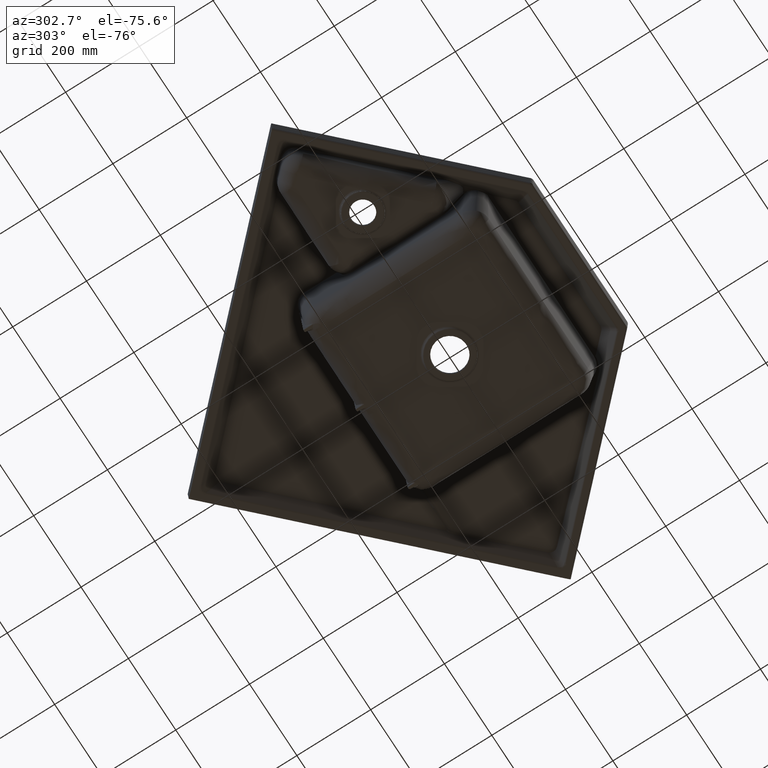
[diagram: clean part render]
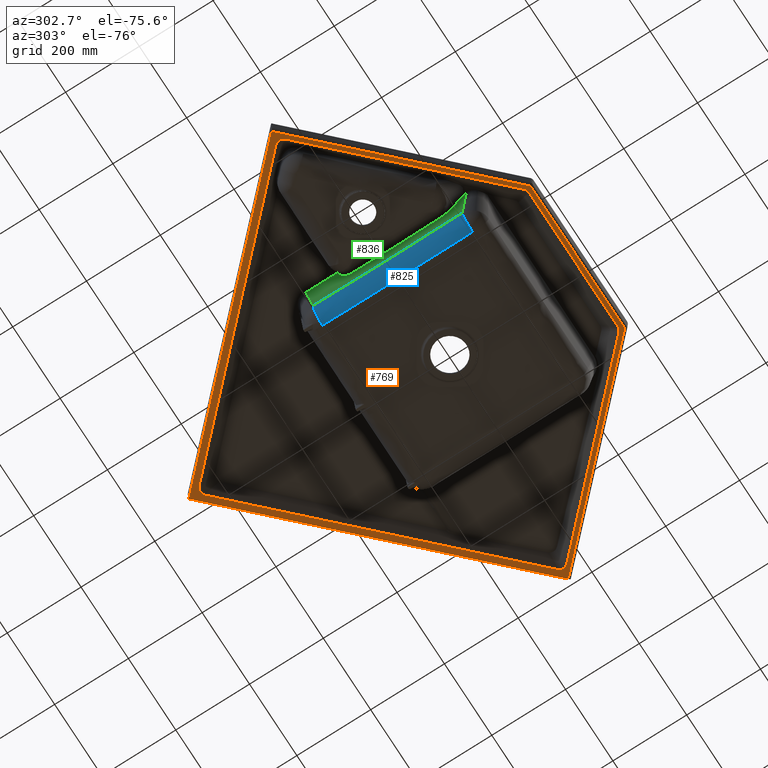
[diagram: same view with three faces highlighted in distinct colors, each labeled with its STEP entity id]
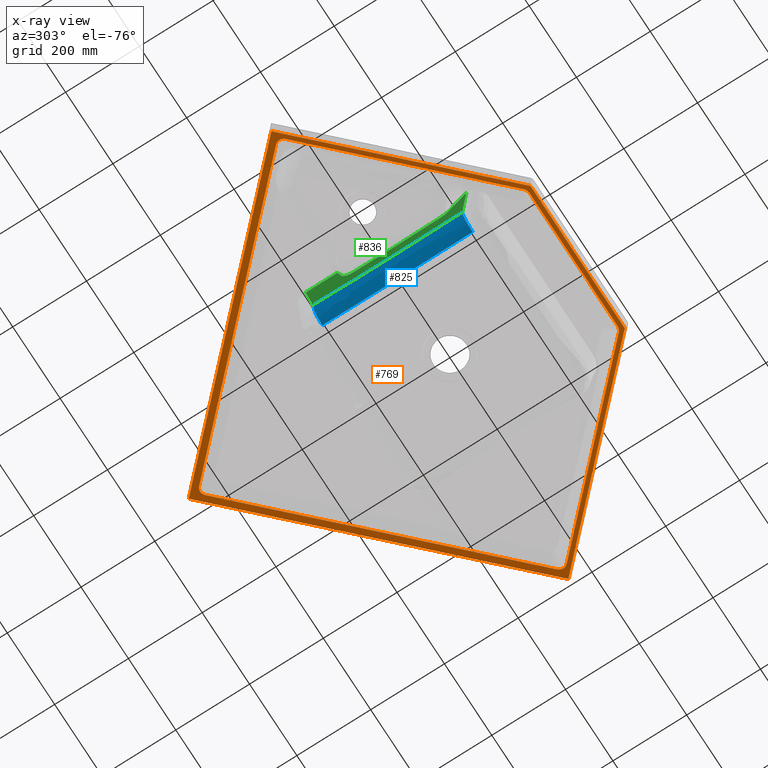
[diagram: x-ray of the same camera — body ghosted, the three highlighted faces saturated]
A machine part, auxiliary view with three faces highlighted in distinct colors.
The next image is the same camera in x-ray (body ghosted, the three faces saturated) — at least one of them is partly hidden behind the body in this view.
Their STEP definitions:

[orange] entity #769 — the highlighted planar face has unit normal (0, 0, -1).
#61=PLANE('',#6075);
#107=ELLIPSE('',#6073,4.00374727793932,4.);
#108=ELLIPSE('',#6074,4.00374727793932,4.);
#236=LINE('',#14063,#311);
#237=LINE('',#18926,#312);
#238=LINE('',#18940,#313);
#239=LINE('',#18953,#314);
#240=LINE('',#18986,#315);
#241=LINE('',#18997,#316);
#242=LINE('',#18998,#317);
#243=LINE('',#19000,#318);
#244=LINE('',#19004,#319);
#311=VECTOR('',#6630,1.);
#312=VECTOR('',#6643,1.);
#313=VECTOR('',#6644,1.);
#314=VECTOR('',#6645,1.);
#315=VECTOR('',#6646,1.);
#316=VECTOR('',#6649,1.);
#317=VECTOR('',#6650,1.);
#318=VECTOR('',#6651,1.);
#319=VECTOR('',#6654,1.);
#517=FACE_BOUND('',#1733,.T.);
#518=FACE_BOUND('',#1734,.T.);
#769=ADVANCED_FACE('',(#517,#518),#61,.T.);
#1733=EDGE_LOOP('',(#2946,#2947,#2948,#2949,#2950,#2951,#2952,#2953,#2954,
#2955));
#1734=EDGE_LOOP('',(#2956,#2957,#2958,#2959,#2960,#2961,#2962));
#2946=ORIENTED_EDGE('',*,*,#5016,.T.);
#2947=ORIENTED_EDGE('',*,*,#5017,.T.);
#2948=ORIENTED_EDGE('',*,*,#5018,.T.);
#2949=ORIENTED_EDGE('',*,*,#5019,.T.);
#2950=ORIENTED_EDGE('',*,*,#5020,.T.);
#2951=ORIENTED_EDGE('',*,*,#5021,.T.);
#2952=ORIENTED_EDGE('',*,*,#5022,.T.);
#2953=ORIENTED_EDGE('',*,*,#5023,.T.);
#2954=ORIENTED_EDGE('',*,*,#5024,.T.);
#2955=ORIENTED_EDGE('',*,*,#5025,.T.);
#2956=ORIENTED_EDGE('',*,*,#5026,.T.);
#2957=ORIENTED_EDGE('',*,*,#5027,.T.);
#2958=ORIENTED_EDGE('',*,*,#4999,.T.);
#2959=ORIENTED_EDGE('',*,*,#5028,.T.);
#2960=ORIENTED_EDGE('',*,*,#5029,.T.);
#2961=ORIENTED_EDGE('',*,*,#5030,.T.);
#2962=ORIENTED_EDGE('',*,*,#5031,.T.);
#4285=VERTEX_POINT('',#14062);
#4286=VERTEX_POINT('',#14064);
#4295=VERTEX_POINT('',#18927);
#4296=VERTEX_POINT('',#18928);
#4297=VERTEX_POINT('',#18939);
#4298=VERTEX_POINT('',#18941);
#4299=VERTEX_POINT('',#18952);
#4300=VERTEX_POINT('',#18954);
#4301=VERTEX_POINT('',#18965);
#4302=VERTEX_POINT('',#18978);
#4303=VERTEX_POINT('',#18985);
#4304=VERTEX_POINT('',#18987);
#4305=VERTEX_POINT('',#18995);
#4306=VERTEX_POINT('',#18996);
#4307=VERTEX_POINT('',#18999);
#4308=VERTEX_POINT('',#19001);
#4309=VERTEX_POINT('',#19003);
#4999=EDGE_CURVE('',#4286,#4285,#236,.T.);
#5016=EDGE_CURVE('',#4295,#4296,#237,.T.);
#5017=EDGE_CURVE('',#4296,#4297,#5636,.T.);
#5018=EDGE_CURVE('',#4297,#4298,#238,.T.);
#5019=EDGE_CURVE('',#4298,#4299,#5637,.T.);
#5020=EDGE_CURVE('',#4299,#4300,#239,.T.);
#5021=EDGE_CURVE('',#4300,#4301,#5638,.T.);
#5022=EDGE_CURVE('',#4301,#4302,#5639,.T.);
#5023=EDGE_CURVE('',#4302,#4303,#5640,.T.);
#5024=EDGE_CURVE('',#4303,#4304,#240,.T.);
#5025=EDGE_CURVE('',#4304,#4295,#5641,.T.);
#5026=EDGE_CURVE('',#4305,#4306,#107,.T.);
#5027=EDGE_CURVE('',#4306,#4286,#241,.T.);
#5028=EDGE_CURVE('',#4285,#4307,#242,.T.);
#5029=EDGE_CURVE('',#4307,#4308,#243,.T.);
#5030=EDGE_CURVE('',#4308,#4309,#108,.T.);
#5031=EDGE_CURVE('',#4309,#4305,#244,.T.);
#5636=B_SPLINE_CURVE_WITH_KNOTS('',3,(#18929,#18930,#18931,#18932,#18933,
#18934,#18935,#18936,#18937,#18938),.UNSPECIFIED.,.F.,.F.,(4,2,2,2,4),(0.,
0.25,0.5,0.75,1.),.UNSPECIFIED.);
#5637=B_SPLINE_CURVE_WITH_KNOTS('',3,(#18942,#18943,#18944,#18945,#18946,
#18947,#18948,#18949,#18950,#18951),.UNSPECIFIED.,.F.,.F.,(4,2,2,2,4),(0.,
0.25,0.5,0.75,1.),.UNSPECIFIED.);
#5638=B_SPLINE_CURVE_WITH_KNOTS('',3,(#18955,#18956,#18957,#18958,#18959,
#18960,#18961,#18962,#18963,#18964),.UNSPECIFIED.,.F.,.F.,(4,2,2,2,4),(0.,
0.25,0.5,0.75,1.),.UNSPECIFIED.);
#5639=B_SPLINE_CURVE_WITH_KNOTS('',3,(#18966,#18967,#18968,#18969,#18970,
#18971,#18972,#18973,#18974,#18975,#18976,#18977),.UNSPECIFIED.,.F.,.F.,
(4,2,2,2,2,4),(0.,0.0287990649625612,0.143995324812806,0.604780364213784,
0.676932956158185,1.),.UNSPECIFIED.);
#5640=B_SPLINE_CURVE_WITH_KNOTS('',3,(#18979,#18980,#18981,#18982,#18983,
#18984),.UNSPECIFIED.,.F.,.F.,(4,2,4),(0.,0.5,1.),.UNSPECIFIED.);
#5641=B_SPLINE_CURVE_WITH_KNOTS('',3,(#18988,#18989,#18990,#18991,#18992,
#18993),.UNSPECIFIED.,.F.,.F.,(4,2,4),(0.,0.5,1.),.UNSPECIFIED.);
#6073=AXIS2_PLACEMENT_3D('',#18994,#6647,#6648);
#6074=AXIS2_PLACEMENT_3D('',#19002,#6652,#6653);
#6075=AXIS2_PLACEMENT_3D('',#19005,#6655,#6656);
#6630=DIRECTION('',(0.707106781186547,0.707106781186548,0.));
#6643=DIRECTION('',(0.707106781186646,0.707106781186449,0.));
#6644=DIRECTION('',(-0.70710678118652,0.707106781186575,0.));
#6645=DIRECTION('',(-0.707106781186574,-0.707106781186521,0.));
#6646=DIRECTION('',(1.,0.,0.));
#6647=DIRECTION('',(1.41117820816041E-16,2.78371802776587E-15,-1.));
#6648=DIRECTION('',(-0.382683432365119,-0.923879532511275,-2.62582356217331E-15));
#6649=DIRECTION('',(-0.707106781186547,0.707106781186548,1.8686005262992E-15));
#6650=DIRECTION('',(0.707106781186547,-0.707106781186547,0.));
#6651=DIRECTION('',(-0.707106781186547,-0.707106781186548,-2.06817126238978E-15));
#6652=DIRECTION('',(1.41117820816041E-16,2.78371802776587E-15,-1.));
#6653=DIRECTION('',(0.382683432365125,-0.923879532511272,-2.51781665809776E-15));
#6654=DIRECTION('',(-1.,5.64471283264162E-18,-1.41117820816041E-16));
#6655=DIRECTION('',(1.41117820816041E-16,2.78371802776587E-15,-1.));
#6656=DIRECTION('',(0.,-1.,-2.77555756156289E-15));
#14062=CARTESIAN_POINT('',(-1.13686837721616E-13,708.074385342194,150.));
#14063=CARTESIAN_POINT('',(-315.3696244092,392.704760932994,150.));
#14064=CARTESIAN_POINT('',(-626.662921002776,81.4114643394183,150.));
#18926=CARTESIAN_POINT('',(396.716341497165,-133.089791050994,150.000000000001));
#18927=CARTESIAN_POINT('',(200.29141392239,-329.514718625769,150.));
#18928=CARTESIAN_POINT('',(593.14126907194,63.3351365237822,150.000000000001));
#18929=CARTESIAN_POINT('',(593.14126907194,63.3351365237822,150.000000000001));
#18930=CARTESIAN_POINT('',(595.018846259465,65.2127137113054,150.000000000001));
#18931=CARTESIAN_POINT('',(596.638625974468,67.3318133328262,150.000000000001));
#18932=CARTESIAN_POINT('',(598.965149535184,72.0725209781968,150.000000000001));
#18933=CARTESIAN_POINT('',(599.635371781057,74.6852958024811,150.000000000001));
#18934=CARTESIAN_POINT('',(599.64198601574,79.9443139832494,150.000000000001));
#18935=CARTESIAN_POINT('',(598.972643789954,82.5758602953495,150.000000000001));
#18936=CARTESIAN_POINT('',(596.650383859697,87.3210672198435,150.000000000001));
#18937=CARTESIAN_POINT('',(595.02201375674,89.4543918390077,150.000000000001));
#18938=CARTESIAN_POINT('',(593.141269071942,91.3351365238038,150.000000000001));
#18939=CARTESIAN_POINT('',(593.141269071942,91.3351365238038,150.000000000001));
#18940=CARTESIAN_POINT('',(303.570634535976,380.905771059769,150.000000000002));
#18941=CARTESIAN_POINT('',(14.0000000000085,670.476405595735,150.000000000003));
#18942=CARTESIAN_POINT('',(14.0000000000085,670.476405595735,150.000000000003));
#18943=CARTESIAN_POINT('',(12.1224228124852,672.35398278326,150.000000000003));
#18944=CARTESIAN_POINT('',(10.0033231909645,673.973762498262,150.000000000003));
#18945=CARTESIAN_POINT('',(5.26261554559427,676.300286058977,150.000000000003));
#18946=CARTESIAN_POINT('',(2.6498407213102,676.97050830485,150.000000000003));
#18947=CARTESIAN_POINT('',(-2.60917745945725,676.977122539532,150.000000000003));
#18948=CARTESIAN_POINT('',(-5.24072377155704,676.307780313745,150.000000000003));
#18949=CARTESIAN_POINT('',(-9.98593069605024,673.985520383489,150.000000000003));
#18950=CARTESIAN_POINT('',(-12.1192553152139,672.357150280532,150.000000000003));
#18951=CARTESIAN_POINT('',(-14.0000000000098,670.476405595734,150.000000000003));
#18952=CARTESIAN_POINT('',(-14.0000000000098,670.476405595734,150.000000000003));
#18953=CARTESIAN_POINT('',(-303.570634535981,380.905771059764,150.000000000002));
#18954=CARTESIAN_POINT('',(-593.141269071952,91.3351365237943,150.000000000001));
#18955=CARTESIAN_POINT('',(-593.141269071952,91.3351365237943,150.000000000001));
#18956=CARTESIAN_POINT('',(-595.018846259475,89.4575593362717,150.000000000001));
#18957=CARTESIAN_POINT('',(-596.638625974475,87.338459714752,150.000000000001));
#18958=CARTESIAN_POINT('',(-598.965149535186,82.597752069385,150.000000000001));
#18959=CARTESIAN_POINT('',(-599.635371781058,79.9849772451028,150.000000000001));
#18960=CARTESIAN_POINT('',(-599.64198601574,74.7259590643398,150.000000000001));
#18961=CARTESIAN_POINT('',(-598.972643789955,72.0944127522422,150.000000000001));
#18962=CARTESIAN_POINT('',(-596.650383859702,67.3492058277521,150.000000000001));
#18963=CARTESIAN_POINT('',(-595.022013756747,65.2158812085894,150.000000000001));
#18964=CARTESIAN_POINT('',(-593.141269071952,63.3351365237942,150.000000000001));
#18965=CARTESIAN_POINT('',(-593.141269071952,63.3351365237942,150.000000000001));
#18966=CARTESIAN_POINT('',(-593.141269071952,63.3351365237942,150.000000000001));
#18967=CARTESIAN_POINT('',(-589.370032905624,59.5639003574659,150.000000000001));
#18968=CARTESIAN_POINT('',(-585.598796739296,55.7926641911377,150.000000000001));
#18969=CARTESIAN_POINT('',(-566.742615907654,36.9364833594964,150.000000000001));
#18970=CARTESIAN_POINT('',(-551.657671242341,21.8515386941833,150.000000000001));
#18971=CARTESIAN_POINT('',(-476.232947915777,-53.5731846323819,150.000000000001));
#18972=CARTESIAN_POINT('',(-415.893169254525,-113.912963293634,150.000000000001));
#18973=CARTESIAN_POINT('',(-346.105012161932,-183.701120386227,150.));
#18974=CARTESIAN_POINT('',(-336.656633730591,-193.149498817568,150.));
#18975=CARTESIAN_POINT('',(-284.902641506966,-244.903491041193,150.));
#18976=CARTESIAN_POINT('',(-242.597027714682,-287.209104833477,150.));
#18977=CARTESIAN_POINT('',(-200.291413922398,-329.514718625761,150.));
#18978=CARTESIAN_POINT('',(-200.291413922398,-329.514718625761,150.));
#18979=CARTESIAN_POINT('',(-200.291413922398,-329.514718625761,150.));
#18980=CARTESIAN_POINT('',(-198.439344425466,-331.366788122693,150.));
#18981=CARTESIAN_POINT('',(-196.320257357541,-332.823050089663,150.));
#18982=CARTESIAN_POINT('',(-191.474933447418,-334.835579122223,150.));
#18983=CARTESIAN_POINT('',(-188.912445502729,-335.313708498983,150.));
#18984=CARTESIAN_POINT('',(-186.291413922411,-335.313708498985,150.));
#18985=CARTESIAN_POINT('',(-186.291413922411,-335.313708498985,150.));
#18986=CARTESIAN_POINT('',(-3.22658566531686E-12,-335.313708498985,150.));
#18987=CARTESIAN_POINT('',(186.291413922404,-335.313708498985,150.));
#18988=CARTESIAN_POINT('',(186.291413922404,-335.313708498985,150.));
#18989=CARTESIAN_POINT('',(188.910635723422,-335.313708498984,150.));
#18990=CARTESIAN_POINT('',(191.438789271104,-334.845020375357,150.));
#18991=CARTESIAN_POINT('',(196.288023591254,-332.841931907721,150.));
#18992=CARTESIAN_POINT('',(198.438064718242,-331.368067829915,150.));
#18993=CARTESIAN_POINT('',(200.29141392239,-329.514718625769,150.));
#18994=CARTESIAN_POINT('',(-197.35807554177,-342.232003197443,150.));
#18995=CARTESIAN_POINT('',(-197.360724390337,-346.235201918465,150.));
#18996=CARTESIAN_POINT('',(-200.186891485058,-345.064565178299,150.));
#18997=CARTESIAN_POINT('',(-146.976756405331,-398.274700258027,150.));
#18998=CARTESIAN_POINT('',(315.3696244092,392.704760932994,150.));
#18999=CARTESIAN_POINT('',(626.662921002776,81.4114643394183,150.));
#19000=CARTESIAN_POINT('',(46.2747002580274,-498.97675640533,150.));
#19001=CARTESIAN_POINT('',(200.186891485058,-345.064565178299,150.));
#19002=CARTESIAN_POINT('',(197.35807554177,-342.232003197442,150.));
#19003=CARTESIAN_POINT('',(197.360724390337,-346.235201918465,150.));
#19004=CARTESIAN_POINT('',(-100.702056147303,-346.235201918465,150.));
#19005=CARTESIAN_POINT('',(-100.702056147303,-352.,150.));

[blue] entity #825 — the highlighted face is a freeform B-spline surface patch.
#475=CIRCLE('',#6055,44.);
#481=CIRCLE('',#6089,44.0000000000001);
#825=ADVANCED_FACE('',(#1402),#1088,.T.);
#1088=(
BOUNDED_SURFACE()
B_SPLINE_SURFACE(3,2,((#24753,#24754,#24755),(#24756,#24757,#24758),(#24759,
#24760,#24761),(#24762,#24763,#24764),(#24765,#24766,#24767),(#24768,#24769,
#24770),(#24771,#24772,#24773),(#24774,#24775,#24776),(#24777,#24778,#24779),
(#24780,#24781,#24782)),.UNSPECIFIED.,.F.,.F.,.F.)
B_SPLINE_SURFACE_WITH_KNOTS((4,2,2,2,4),(3,3),(0.,0.25,0.5,0.75,1.),(0.,
1.),.UNSPECIFIED.)
GEOMETRIC_REPRESENTATION_ITEM()
RATIONAL_B_SPLINE_SURFACE(((1.,0.74216822810571,1.),(1.,0.743477455896361,
1.),(1.,0.745037868931254,1.),(1.,0.747746309309219,1.),(1.,0.748833363440037,
1.),(1.,0.749057293900004,1.),(1.,0.748164866127767,1.),(1.,0.745601054936324,
1.),(1.,0.744016390055633,1.),(1.,0.742670123058352,1.)))
REPRESENTATION_ITEM('')
SURFACE()
);
#1402=FACE_OUTER_BOUND('',#1794,.T.);
#1794=EDGE_LOOP('',(#3281,#3282,#3283,#3284));
#3281=ORIENTED_EDGE('',*,*,#4950,.F.);
#3282=ORIENTED_EDGE('',*,*,#5099,.T.);
#3283=ORIENTED_EDGE('',*,*,#5071,.T.);
#3284=ORIENTED_EDGE('',*,*,#5117,.T.);
#4251=VERTEX_POINT('',#13420);
#4252=VERTEX_POINT('',#13422);
#4332=VERTEX_POINT('',#19783);
#4333=VERTEX_POINT('',#19784);
#4950=EDGE_CURVE('',#4251,#4252,#475,.T.);
#5071=EDGE_CURVE('',#4332,#4333,#481,.T.);
#5099=EDGE_CURVE('',#4251,#4332,#5688,.T.);
#5117=EDGE_CURVE('',#4333,#4252,#5706,.T.);
#5688=B_SPLINE_CURVE_WITH_KNOTS('',3,(#20745,#20746,#20747,#20748,#20749,
#20750,#20751,#20752,#20753,#20754),.UNSPECIFIED.,.F.,.F.,(4,2,2,2,4),(0.,
0.25,0.5,0.75,1.),.UNSPECIFIED.);
#5706=B_SPLINE_CURVE_WITH_KNOTS('',3,(#24747,#24748,#24749,#24750,#24751,
#24752),.UNSPECIFIED.,.F.,.F.,(4,2,4),(0.,0.5,1.),.UNSPECIFIED.);
#6055=AXIS2_PLACEMENT_3D('',#13421,#6597,#6598);
#6089=AXIS2_PLACEMENT_3D('',#19782,#6686,#6687);
#6597=DIRECTION('',(-0.00258642501371604,0.998778102226912,0.0493519292191908));
#6598=DIRECTION('',(0.,-0.0493520942922123,0.998781442953849));
#6686=DIRECTION('',(0.00250530927490152,0.998853586263086,-0.0478041487196422));
#6687=DIRECTION('',(0.,0.0478042987435006,0.998856720967348));
#13420=CARTESIAN_POINT('',(-211.52890576607,210.180921392272,1.40993724394285));
#13421=CARTESIAN_POINT('',(-209.35149051798,208.017714689607,45.3027544194094));
#13422=CARTESIAN_POINT('',(-253.291190047182,208.017714689607,42.9999723447199));
#19782=CARTESIAN_POINT('',(-209.319608386237,-195.512416990785,44.6944071057174));
#19783=CARTESIAN_POINT('',(-211.562694144095,-197.607457894971,0.801590268645903));
#19784=CARTESIAN_POINT('',(-253.259307915439,-195.512416991055,42.3916250310393));
#20745=CARTESIAN_POINT('',(-211.528905757382,210.180921392315,1.409937243514));
#20746=CARTESIAN_POINT('',(-211.615962677794,176.400028800175,-0.250596276617449));
#20747=CARTESIAN_POINT('',(-211.740832171616,142.545459827731,-1.71916204338613));
#20748=CARTESIAN_POINT('',(-211.984346319801,74.6012719761885,-3.87091164433834));
#20749=CARTESIAN_POINT('',(-212.09315921679,40.4972765373179,-4.53318028471138));
#20750=CARTESIAN_POINT('',(-212.115332754531,-27.7989583034788,-4.67407963460889));
#20751=CARTESIAN_POINT('',(-212.024936466819,-61.9283659767144,-4.14951842492736));
#20752=CARTESIAN_POINT('',(-211.789449455072,-129.926670862561,-2.20339384827308));
#20753=CARTESIAN_POINT('',(-211.657213279966,-163.808234916033,-0.806844669530122));
#20754=CARTESIAN_POINT('',(-211.562694135415,-197.607457895014,0.801590268204371));
#24747=CARTESIAN_POINT('',(-253.259307915439,-195.512416991048,42.3916250310402));
#24748=CARTESIAN_POINT('',(-253.090710966387,-128.293703166067,39.1746036010473));
#24749=CARTESIAN_POINT('',(-252.968647863829,-61.0511729776101,36.8455008566113));
#24750=CARTESIAN_POINT('',(-252.983416978318,73.5663919201783,37.127312348935));
#24751=CARTESIAN_POINT('',(-253.11713348417,140.803748399114,39.6787752745064));
#24752=CARTESIAN_POINT('',(-253.291190047182,208.017714689607,42.9999723447199));
#24753=CARTESIAN_POINT('',(-211.52890576607,210.180921392271,1.40993724394284));
#24754=CARTESIAN_POINT('',(-251.21420794083,209.981361187402,3.36879287546678));
#24755=CARTESIAN_POINT('',(-253.291190047182,208.017714689607,42.9999723447199));
#24756=CARTESIAN_POINT('',(-211.615962686461,176.400028800133,-0.250596276154933));
#24757=CARTESIAN_POINT('',(-251.135203922481,176.268876322154,1.86130634188282));
#24758=CARTESIAN_POINT('',(-253.204161917322,174.410790131112,41.339376703197));
#24759=CARTESIAN_POINT('',(-211.740832180259,142.545459827693,-1.71916204288475));
#24760=CARTESIAN_POINT('',(-251.067225233209,142.432602543775,0.564195745656528));
#24761=CARTESIAN_POINT('',(-253.127200934859,140.797999728248,39.8708736771992));
#24762=CARTESIAN_POINT('',(-211.9843463284,74.6012719761637,-3.87091164376877));
#24763=CARTESIAN_POINT('',(-250.970225878508,74.5503316736031,-1.28666221008084));
#24764=CARTESIAN_POINT('',(-253.014432556499,73.5490369410428,37.7191248356563));
#24765=CARTESIAN_POINT('',(-212.093159225371,40.4972765373039,-4.53318028411454));
#24766=CARTESIAN_POINT('',(-250.941690366279,40.4388343447684,-1.83115222298741));
#24767=CARTESIAN_POINT('',(-252.979724699718,39.9120006960563,37.0568594762696));
#24768=CARTESIAN_POINT('',(-212.115332763108,-27.7989583034692,-4.67407963400643));
#24769=CARTESIAN_POINT('',(-250.935596610307,-27.7502076971813,-1.94742799636251));
#24770=CARTESIAN_POINT('',(-252.97234014243,-27.3967817534879,36.9159537292765));
#24771=CARTESIAN_POINT('',(-212.024936475411,-61.9283659766931,-4.14951842434728));
#24772=CARTESIAN_POINT('',(-250.958030944742,-61.8900668960019,-1.51935541587166));
#24773=CARTESIAN_POINT('',(-252.999831458024,-61.0352129849832,37.4405192798625));
#24774=CARTESIAN_POINT('',(-211.789449463706,-129.926670862524,-2.2033938477575));
#24775=CARTESIAN_POINT('',(-251.045125362374,-129.819070870445,0.142505097185275));
#24776=CARTESIAN_POINT('',(-253.101823380653,-128.288015751763,39.3866410965879));
#24777=CARTESIAN_POINT('',(-211.657213288624,-163.808234915992,-0.806844669054035));
#24778=CARTESIAN_POINT('',(-251.109212301612,-163.684177966742,1.36535667152964));
#24779=CARTESIAN_POINT('',(-253.175009575398,-161.90311365949,40.7831168821708));
#24780=CARTESIAN_POINT('',(-211.562694144095,-197.607457894971,0.801590268645909));
#24781=CARTESIAN_POINT('',(-251.185295177605,-197.411616568414,2.81710448834306));
#24782=CARTESIAN_POINT('',(-253.259307915439,-195.512416991048,42.3916250310402));

[green] entity #836 — the highlighted planar face has unit normal (-0.9986, 0, -0.0523).
#83=PLANE('',#6111);
#836=ADVANCED_FACE('',(#1413),#83,.T.);
#1413=FACE_OUTER_BOUND('',#1805,.T.);
#1805=EDGE_LOOP('',(#3330,#3331,#3332,#3333,#3334,#3335,#3336,#3337,#3338,
#3339,#3340,#3341));
#3330=ORIENTED_EDGE('',*,*,#5076,.F.);
#3331=ORIENTED_EDGE('',*,*,#5075,.T.);
#3332=ORIENTED_EDGE('',*,*,#5117,.F.);
#3333=ORIENTED_EDGE('',*,*,#5089,.T.);
#3334=ORIENTED_EDGE('',*,*,#5088,.F.);
#3335=ORIENTED_EDGE('',*,*,#4892,.F.);
#3336=ORIENTED_EDGE('',*,*,#4930,.F.);
#3337=ORIENTED_EDGE('',*,*,#4928,.F.);
#3338=ORIENTED_EDGE('',*,*,#4925,.F.);
#3339=ORIENTED_EDGE('',*,*,#4922,.F.);
#3340=ORIENTED_EDGE('',*,*,#4917,.F.);
#3341=ORIENTED_EDGE('',*,*,#4622,.F.);
#4050=VERTEX_POINT('',#9834);
#4053=VERTEX_POINT('',#9849);
#4211=VERTEX_POINT('',#12350);
#4212=VERTEX_POINT('',#12354);
#4227=VERTEX_POINT('',#12664);
#4230=VERTEX_POINT('',#12696);
#4232=VERTEX_POINT('',#12818);
#4234=VERTEX_POINT('',#12880);
#4252=VERTEX_POINT('',#13422);
#4333=VERTEX_POINT('',#19784);
#4335=VERTEX_POINT('',#19884);
#4341=VERTEX_POINT('',#20253);
#4622=EDGE_CURVE('',#4053,#4050,#5456,.T.);
#4892=EDGE_CURVE('',#4211,#4212,#5538,.T.);
#4917=EDGE_CURVE('',#4050,#4227,#5555,.T.);
#4922=EDGE_CURVE('',#4227,#4230,#5557,.T.);
#4925=EDGE_CURVE('',#4230,#4232,#5560,.T.);
#4928=EDGE_CURVE('',#4232,#4234,#5563,.T.);
#4930=EDGE_CURVE('',#4234,#4211,#5564,.T.);
#5075=EDGE_CURVE('',#4335,#4252,#5667,.T.);
#5076=EDGE_CURVE('',#4335,#4053,#5668,.T.);
#5088=EDGE_CURVE('',#4212,#4341,#5680,.T.);
#5089=EDGE_CURVE('',#4333,#4341,#5681,.T.);
#5117=EDGE_CURVE('',#4333,#4252,#5706,.T.);
#5456=B_SPLINE_CURVE_WITH_KNOTS('',3,(#9851,#9852,#9853,#9854,#9855,#9856,
#9857,#9858),.UNSPECIFIED.,.F.,.F.,(4,2,2,4),(0.,0.0701197670714171,0.350598835357084,
1.),.UNSPECIFIED.);
#5538=B_SPLINE_CURVE_WITH_KNOTS('',3,(#12360,#12361,#12362,#12363),
 .UNSPECIFIED.,.F.,.F.,(4,4),(0.,1.),.UNSPECIFIED.);
#5555=B_SPLINE_CURVE_WITH_KNOTS('',3,(#12660,#12661,#12662,#12663),
 .UNSPECIFIED.,.F.,.F.,(4,4),(0.,1.),.UNSPECIFIED.);
#5557=B_SPLINE_CURVE_WITH_KNOTS('',3,(#12723,#12724,#12725,#12726,#12727,
#12728,#12729,#12730,#12731,#12732),.UNSPECIFIED.,.F.,.F.,(4,2,2,2,4),(0.,
0.25,0.5,0.75,1.),.UNSPECIFIED.);
#5560=B_SPLINE_CURVE_WITH_KNOTS('',3,(#12829,#12830,#12831,#12832,#12833,
#12834,#12835,#12836,#12837,#12838),.UNSPECIFIED.,.F.,.F.,(4,2,2,2,4),(0.,
0.25,0.5,0.75,1.),.UNSPECIFIED.);
#5563=B_SPLINE_CURVE_WITH_KNOTS('',3,(#12895,#12896,#12897,#12898,#12899,
#12900,#12901,#12902,#12903,#12904,#12905,#12906,#12907,#12908,#12909,#12910,
#12911,#12912,#12913,#12914,#12915,#12916,#12917,#12918,#12919,#12920,#12921,
#12922,#12923,#12924,#12925,#12926,#12927,#12928,#12929,#12930,#12931,#12932,
#12933,#12934,#12935,#12936,#12937,#12938,#12939,#12940,#12941,#12942,#12943,
#12944,#12945,#12946,#12947),.UNSPECIFIED.,.F.,.F.,(4,2,2,2,2,2,2,1,1,2,
2,2,2,2,2,2,2,2,2,1,2,2,2,2,2,2,2,4),(0.,0.0156249999999917,0.0312499999999834,
0.06249999999997,0.0937499999999565,0.124999999999943,0.15624999999993,
0.187499999999916,0.218749999999903,0.234374999999898,0.249999999999893,
0.312499999999888,0.374999999999883,0.49999999999987,0.562499999999863,
0.593749999999859,0.624999999999855,0.687499999999847,0.718749999999845,
0.734374999999846,0.742187499999849,0.749999999999852,0.812499999999888,
0.843749999999906,0.859374999999915,0.867187499999919,0.874999999999923,
1.),.UNSPECIFIED.);
#5564=B_SPLINE_CURVE_WITH_KNOTS('',3,(#13154,#13155,#13156,#13157),
 .UNSPECIFIED.,.F.,.F.,(4,4),(0.,1.),.UNSPECIFIED.);
#5667=B_SPLINE_CURVE_WITH_KNOTS('',3,(#19880,#19881,#19882,#19883),
 .UNSPECIFIED.,.F.,.F.,(4,4),(0.,1.),.UNSPECIFIED.);
#5668=B_SPLINE_CURVE_WITH_KNOTS('',3,(#19885,#19886,#19887,#19888),
 .UNSPECIFIED.,.F.,.F.,(4,4),(0.,1.),.UNSPECIFIED.);
#5680=B_SPLINE_CURVE_WITH_KNOTS('',3,(#20249,#20250,#20251,#20252),
 .UNSPECIFIED.,.F.,.F.,(4,4),(0.,1.),.UNSPECIFIED.);
#5681=B_SPLINE_CURVE_WITH_KNOTS('',3,(#20254,#20255,#20256,#20257),
 .UNSPECIFIED.,.F.,.F.,(4,4),(0.,1.),.UNSPECIFIED.);
#5706=B_SPLINE_CURVE_WITH_KNOTS('',3,(#24747,#24748,#24749,#24750,#24751,
#24752),.UNSPECIFIED.,.F.,.F.,(4,2,4),(0.,0.5,1.),.UNSPECIFIED.);
#6111=AXIS2_PLACEMENT_3D('',#29044,#6730,#6731);
#6730=DIRECTION('',(-0.998629534754574,0.,-0.0523359562429485));
#6731=DIRECTION('',(-0.0523359562429485,0.,0.998629534754574));
#9834=CARTESIAN_POINT('',(-260.060023457776,138.288211357387,172.157007868729));
#9849=CARTESIAN_POINT('',(-260.060023457776,223.856094004359,172.157007868729));
#9851=CARTESIAN_POINT('',(-260.060023457776,223.856094004359,172.157007868729));
#9852=CARTESIAN_POINT('',(-260.060023457776,221.856094004359,172.157007868729));
#9853=CARTESIAN_POINT('',(-260.060023457776,219.856094004359,172.157007868729));
#9854=CARTESIAN_POINT('',(-260.060023457776,209.856094004359,172.157007868729));
#9855=CARTESIAN_POINT('',(-260.060023457776,201.856094004359,172.157007868729));
#9856=CARTESIAN_POINT('',(-260.060023457776,175.333466455368,172.157007868729));
#9857=CARTESIAN_POINT('',(-260.060023457776,156.810838906378,172.157007868729));
#9858=CARTESIAN_POINT('',(-260.060023457776,138.288211357387,172.157007868729));
#12350=CARTESIAN_POINT('',(-259.798033664687,-208.050788995485,167.157944816013));
#12354=CARTESIAN_POINT('',(-259.801363019321,-211.045266247722,167.221472686862));
#12360=CARTESIAN_POINT('',(-259.798033664687,-208.05078899549,167.157944816013));
#12361=CARTESIAN_POINT('',(-259.79776951583,-209.049160537502,167.152904555558));
#12362=CARTESIAN_POINT('',(-259.798838162814,-210.048048217928,167.173295554733));
#12363=CARTESIAN_POINT('',(-259.80136301932,-211.045266247718,167.221472686853));
#12660=CARTESIAN_POINT('',(-260.060023457776,138.288211357387,172.157007868729));
#12661=CARTESIAN_POINT('',(-259.32463153824,135.214349733057,158.12489413302));
#12662=CARTESIAN_POINT('',(-258.595243968356,131.682853174511,144.207350213728));
#12663=CARTESIAN_POINT('',(-257.871672630451,127.708059490736,130.400786611842));
#12664=CARTESIAN_POINT('',(-257.871679652472,127.707592995666,130.400920599976));
#12696=CARTESIAN_POINT('',(-256.470666480267,97.2976436962156,103.667996759837));
#12723=CARTESIAN_POINT('',(-257.871686674492,127.707126500596,130.401054588109));
#12724=CARTESIAN_POINT('',(-257.688755915831,126.701813163793,126.910527777703));
#12725=CARTESIAN_POINT('',(-257.513140434661,125.379799854886,123.559584777027));
#12726=CARTESIAN_POINT('',(-257.183170621196,121.81531529645,117.263385663469));
#12727=CARTESIAN_POINT('',(-257.030863500576,119.580236477627,114.3571926764));
#12728=CARTESIAN_POINT('',(-256.774010752095,114.284578028146,109.456150274016));
#12729=CARTESIAN_POINT('',(-256.668602389516,111.196992760526,107.44483889962));
#12730=CARTESIAN_POINT('',(-256.522262110893,104.557541619162,104.652500040303));
#12731=CARTESIAN_POINT('',(-256.48009957777,100.947079734434,103.847990982682));
#12732=CARTESIAN_POINT('',(-256.470666480267,97.2976436962156,103.667996759837));
#12818=CARTESIAN_POINT('',(-256.59323995584,-141.804193486218,106.00683800153));
#12829=CARTESIAN_POINT('',(-256.470656345122,97.2976532606261,103.667803369749));
#12830=CARTESIAN_POINT('',(-256.419159230422,77.3772785834937,102.685179885126));
#12831=CARTESIAN_POINT('',(-256.372493597189,57.4539764375173,101.794746558787));
#12832=CARTESIAN_POINT('',(-256.314267619426,17.586101311839,100.683728718319));
#12833=CARTESIAN_POINT('',(-256.306514795349,-2.37040470375829,100.535796022399));
#12834=CARTESIAN_POINT('',(-256.343596042339,-42.2400479580647,101.243348364753));
#12835=CARTESIAN_POINT('',(-256.384583656637,-62.1591418094944,102.025438635678));
#12836=CARTESIAN_POINT('',(-256.480550978321,-101.987525770555,103.856604218295));
#12837=CARTESIAN_POINT('',(-256.535811839611,-121.896618886054,104.911044265948));
#12838=CARTESIAN_POINT('',(-256.593239955846,-141.804193486217,106.006838001545));
#12880=CARTESIAN_POINT('',(-257.111130650453,-160.853982505694,115.888781134746));
#12895=CARTESIAN_POINT('',(-256.593256216442,-141.804185272589,106.006986459965));
#12896=CARTESIAN_POINT('',(-256.593404398478,-141.855605054311,106.009815086589));
#12897=CARTESIAN_POINT('',(-256.593716988567,-141.963119317609,106.015780015108));
#12898=CARTESIAN_POINT('',(-256.594959795131,-142.288765417007,106.039494464123));
#12899=CARTESIAN_POINT('',(-256.595205224108,-142.341133307859,106.044178162622));
#12900=CARTESIAN_POINT('',(-256.597120472764,-142.734674123956,106.080724941046));
#12901=CARTESIAN_POINT('',(-256.598083656734,-142.897350222165,106.099102523908));
#12902=CARTESIAN_POINT('',(-256.601500803742,-143.39700390842,106.164279188866));
#12903=CARTESIAN_POINT('',(-256.604275401542,-143.741743512126,106.217185317886));
#12904=CARTESIAN_POINT('',(-256.609163637714,-144.266166236887,106.310380887053));
#12905=CARTESIAN_POINT('',(-256.611459274257,-144.482340186153,106.354143327245));
#12906=CARTESIAN_POINT('',(-256.615278021595,-144.825107804619,106.426945681032));
#12907=CARTESIAN_POINT('',(-256.61691495057,-144.965492094315,106.458155790733));
#12908=CARTESIAN_POINT('',(-256.622389274857,-145.398990880881,106.562546588919));
#12909=CARTESIAN_POINT('',(-256.628262310828,-145.833189955894,106.674553612424));
#12910=CARTESIAN_POINT('',(-256.636590817806,-146.377681832818,106.833433307088));
#12911=CARTESIAN_POINT('',(-256.642026796305,-146.705165997526,106.937153316932));
#12912=CARTESIAN_POINT('',(-256.645747600759,-146.923665504598,107.008151392398));
#12913=CARTESIAN_POINT('',(-256.648209654641,-147.063935270425,107.055133884708));
#12914=CARTESIAN_POINT('',(-256.655227976508,-147.456448887972,107.189067270615));
#12915=CARTESIAN_POINT('',(-256.66220912188,-147.825524093668,107.32232301222));
#12916=CARTESIAN_POINT('',(-256.679644987525,-148.66913117461,107.655152073504));
#12917=CARTESIAN_POINT('',(-256.689010379542,-149.09817187923,107.833934052614));
#12918=CARTESIAN_POINT('',(-256.730046425322,-150.805629814303,108.617162280047));
#12919=CARTESIAN_POINT('',(-256.753945421999,-151.633921385621,109.073123966833));
#12920=CARTESIAN_POINT('',(-256.774504500049,-152.340591474384,109.465414501568));
#12921=CARTESIAN_POINT('',(-256.783834818851,-152.656999737348,109.643452473435));
#12922=CARTESIAN_POINT('',(-256.802072282136,-153.247113144497,109.991442344841));
#12923=CARTESIAN_POINT('',(-256.808860974892,-153.463035040239,110.120975929622));
#12924=CARTESIAN_POINT('',(-256.823971852862,-153.931934623881,110.409293396261));
#12925=CARTESIAN_POINT('',(-256.833157815963,-154.210451864103,110.584556983017));
#12926=CARTESIAN_POINT('',(-256.858026588106,-154.945833718323,111.059019245457));
#12927=CARTESIAN_POINT('',(-256.873358696842,-155.376062784609,111.351523036611));
#12928=CARTESIAN_POINT('',(-256.893976532218,-155.93695518383,111.744891976015));
#12929=CARTESIAN_POINT('',(-256.900454299552,-156.109833566389,111.868485885629));
#12930=CARTESIAN_POINT('',(-256.909530410422,-156.348616561953,112.041663929438));
#12931=CARTESIAN_POINT('',(-256.913908480069,-156.462873253594,112.125202553888));
#12932=CARTESIAN_POINT('',(-256.918038811781,-156.569528259027,112.20401752042));
#12933=CARTESIAN_POINT('',(-256.920736536081,-156.638952723089,112.255496272178));
#12934=CARTESIAN_POINT('',(-256.922983036989,-156.696481655004,112.298365622964));
#12935=CARTESIAN_POINT('',(-256.926286855876,-156.780923155266,112.36141207528));
#12936=CARTESIAN_POINT('',(-256.934898267449,-157.002202984938,112.525757983822));
#12937=CARTESIAN_POINT('',(-256.956992618279,-157.542682707138,112.947403488094));
#12938=CARTESIAN_POINT('',(-256.965896161689,-157.757455133838,113.117315311595));
#12939=CARTESIAN_POINT('',(-256.981734895443,-158.128701098104,113.419566087784));
#12940=CARTESIAN_POINT('',(-256.987429067371,-158.260619802343,113.528226678491));
#12941=CARTESIAN_POINT('',(-256.996620777914,-158.470291360711,113.703627022717));
#12942=CARTESIAN_POINT('',(-256.999793138768,-158.542146677509,113.764162972291));
#12943=CARTESIAN_POINT('',(-257.006360139345,-158.68970019335,113.889475373187));
#12944=CARTESIAN_POINT('',(-257.01130785955,-158.799735310383,113.983887405794));
#12945=CARTESIAN_POINT('',(-257.044552905713,-159.534746606416,114.618262944775));
#12946=CARTESIAN_POINT('',(-257.077268834885,-160.203512825523,115.242499981213));
#12947=CARTESIAN_POINT('',(-257.111138740719,-160.85398250753,115.888780708908));
#13154=CARTESIAN_POINT('',(-257.111112326578,-160.854016955903,115.88843149438));
#13155=CARTESIAN_POINT('',(-257.972152743537,-177.293011421362,132.318061384027));
#13156=CARTESIAN_POINT('',(-258.861886076816,-193.187682997137,149.295184731964));
#13157=CARTESIAN_POINT('',(-259.798033664687,-208.050788995485,167.157944816013));
#13422=CARTESIAN_POINT('',(-253.291190047182,208.017714689607,42.9999723447199));
#19784=CARTESIAN_POINT('',(-253.259307915439,-195.512416991055,42.3916250310393));
#19880=CARTESIAN_POINT('',(-253.344178534669,208.141702342017,44.0110529173378));
#19881=CARTESIAN_POINT('',(-253.326515705506,208.100373124547,43.6740260597985));
#19882=CARTESIAN_POINT('',(-253.308852876344,208.059043907077,43.3369992022592));
#19883=CARTESIAN_POINT('',(-253.291190047182,208.017714689607,42.9999723447199));
#19884=CARTESIAN_POINT('',(-253.344178534669,208.141702342017,44.0110529173377));
#19885=CARTESIAN_POINT('',(-253.344178534669,208.141702342017,44.0110529173377));
#19886=CARTESIAN_POINT('',(-255.582793509038,213.379832896131,86.726371234468));
#19887=CARTESIAN_POINT('',(-257.821408483407,218.617963450245,129.441689551598));
#19888=CARTESIAN_POINT('',(-260.060023457776,223.856094004359,172.157007868729));
#20249=CARTESIAN_POINT('',(-259.801363019321,-211.045266247721,167.221472686862));
#20250=CARTESIAN_POINT('',(-257.638339834847,-205.909584488763,125.948531645197));
#20251=CARTESIAN_POINT('',(-255.475316650374,-200.7739027298,84.675590603532));
#20252=CARTESIAN_POINT('',(-253.3122934659,-195.638220970839,43.4026495618672));
#20253=CARTESIAN_POINT('',(-253.3122934659,-195.638220970842,43.4026495618669));
#20254=CARTESIAN_POINT('',(-253.259307915439,-195.512416991047,42.3916250310403));
#20255=CARTESIAN_POINT('',(-253.276969765593,-195.554351650978,42.7286332079826));
#20256=CARTESIAN_POINT('',(-253.294631615746,-195.596286310909,43.0656413849249));
#20257=CARTESIAN_POINT('',(-253.3122934659,-195.638220970839,43.4026495618672));
#24747=CARTESIAN_POINT('',(-253.259307915439,-195.512416991048,42.3916250310402));
#24748=CARTESIAN_POINT('',(-253.090710966387,-128.293703166067,39.1746036010473));
#24749=CARTESIAN_POINT('',(-252.968647863829,-61.0511729776101,36.8455008566113));
#24750=CARTESIAN_POINT('',(-252.983416978318,73.5663919201783,37.127312348935));
#24751=CARTESIAN_POINT('',(-253.11713348417,140.803748399114,39.6787752745064));
#24752=CARTESIAN_POINT('',(-253.291190047182,208.017714689607,42.9999723447199));
#29044=CARTESIAN_POINT('',(-252.925792683571,-213.654674409236,36.0277753043385));